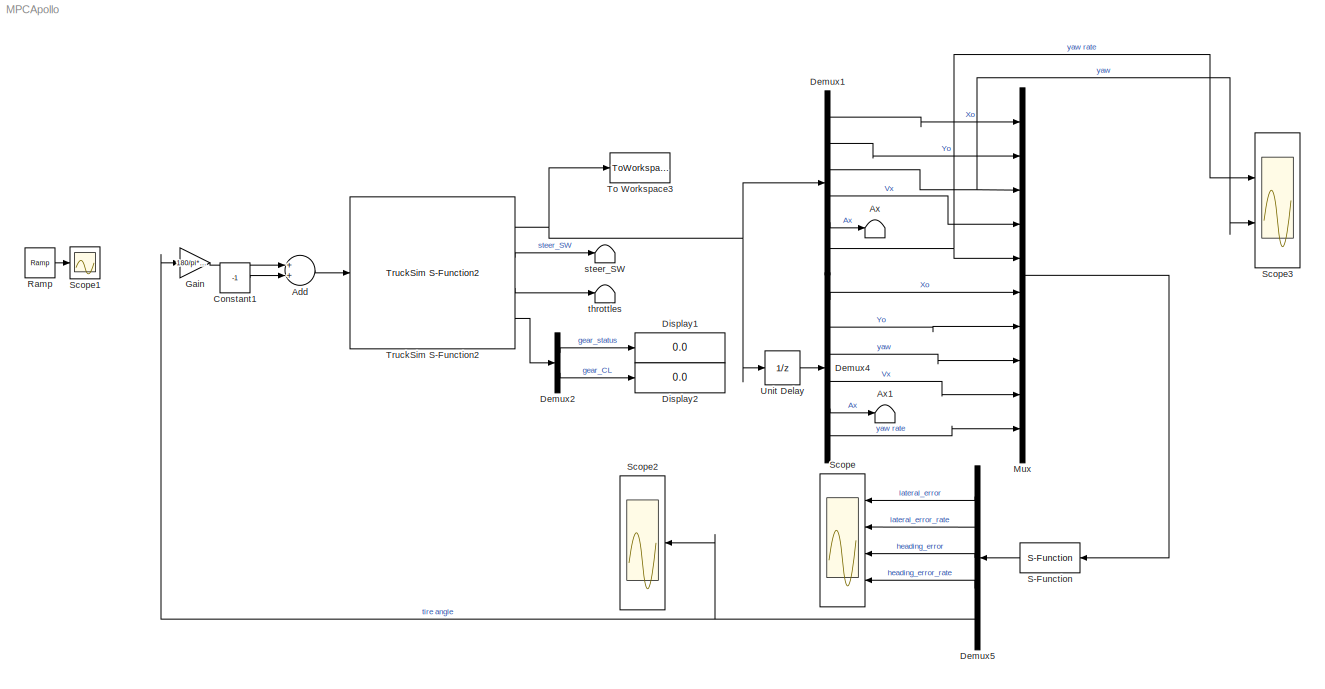
MODEL MPCApollo
KIND model
BLOCK [Sum] Add
  InputSameDT = off
  OutDataTypeStr = Inherit: Inherit via internal rule
  Ports = [2, 1]
  SID = 223
  SaturateOnIntegerOverflow = off
BLOCK [Terminator] Ax
  SID = 207
BLOCK [Terminator] Ax1
  SID = 208
BLOCK [Constant] Constant1
  SID = 224
  Value = -1
BLOCK [Demux] Demux1
  DisplayOption = bar
  Outputs = 6
  Ports = [1, 6]
  SID = 94
BLOCK [Demux] Demux2
  DisplayOption = bar
  Outputs = 2
  Ports = [1, 2]
  SID = 159
BLOCK [Demux] Demux4
  DisplayOption = bar
  Outputs = 6
  Ports = [1, 6]
  SID = 204
BLOCK [Demux] Demux5
  DisplayOption = bar
  Outputs = 5
  Ports = [1, 5]
  SID = 211
BLOCK [Display] Display1
  Decimation = 1
  Ports = [1]
  SID = 158
BLOCK [Display] Display2
  Decimation = 1
  Ports = [1]
  SID = 160
BLOCK [Gain] Gain
  Gain = 180/pi*25
  OutDataTypeStr = Inherit: Inherit via internal rule
  ParamDataTypeStr = Inherit: Inherit via internal rule
  SID = 197
  SaturateOnIntegerOverflow = off
BLOCK [Mux] Mux
  DisplayOption = bar
  Inputs = 10
  Ports = [10, 1]
  SID = 206
BLOCK [Reference] Ramp  REF=simulink/Sources/Ramp
  Commented = on
  InitialOutput = 0
  Ports = [0, 1]
  SID = 214
  SourceBlock = simulink/Sources/Ramp
  SourceProductBaseCode = SL
  SourceProductName = Simulink
  SourceType = Ramp
  VectorParams1D = on
  slope = 100
  start = 0
BLOCK [S-Function] S-Function
  EnableBusSupport = off
  FunctionName = MPC_controller
  Ports = [1, 1]
  SFcnIsStateOwnerBlock = off
  SFunctionDeploymentMode = off
  SID = 193
BLOCK [Scope] Scope
  Floating = off
  NumInputPorts = 4
  Ports = [4]
  SID = 212
  ScopeSpecificationString = Simulink.scopes.TimeScopeBlockCfg('CurrentConfiguration', extmgr.ConfigurationSet(extmgr.Configuration('Core','General UI',true),extmgr.Configuration('Core','Source UI',true),extmgr.Configuration('Sources','WiredSimulink',true),extmgr.Configuration('Visuals','Time Domain',true,'SerializedDisplays',{struct('MinYLimReal','-0.00005','MaxYLimReal','0.0002','YLabelReal','','MinYLimMag','0.00000','MaxYL...<+3418ch>
BLOCK [Scope] Scope1
  Commented = on
  Floating = off
  NumInputPorts = 1
  Ports = [1]
  SID = 215
  ScopeSpecificationString = Simulink.scopes.TimeScopeBlockCfg('CurrentConfiguration', extmgr.ConfigurationSet(extmgr.Configuration('Core','General UI',true),extmgr.Configuration('Core','Source UI',true),extmgr.Configuration('Sources','WiredSimulink',true,'DataLoggingVariableName','ScopeData1'),extmgr.Configuration('Visuals','Time Domain',true,'SerializedDisplays',{struct('MinYLimReal','-99.5546','MaxYLimReal','246.58908','YL...<+1444ch>
BLOCK [Scope] Scope2
  Floating = off
  NumInputPorts = 1
  Ports = [1]
  SID = 218
  ScopeSpecificationString = Simulink.scopes.TimeScopeBlockCfg('CurrentConfiguration', extmgr.ConfigurationSet(extmgr.Configuration('Core','General UI',true),extmgr.Configuration('Core','Source UI',true),extmgr.Configuration('Sources','WiredSimulink',true,'DataLoggingVariableName','ScopeData2'),extmgr.Configuration('Visuals','Time Domain',true,'SerializedDisplays',{struct('MinYLimReal','-0.00009','MaxYLimReal','0.00002','YLab...<+1499ch>
BLOCK [Scope] Scope3
  Floating = off
  NumInputPorts = 2
  Ports = [2]
  SID = 220
  ScopeSpecificationString = Simulink.scopes.TimeScopeBlockCfg('CurrentConfiguration', extmgr.ConfigurationSet(extmgr.Configuration('Core','General UI',true),extmgr.Configuration('Core','Source UI',true),extmgr.Configuration('Sources','WiredSimulink',true,'DataLoggingVariableName','ScopeData3'),extmgr.Configuration('Visuals','Time Domain',true,'SerializedDisplays',{struct('MinYLimReal','-0.00675','MaxYLimReal','0.00628','YLab...<+2159ch>
BLOCK [ToWorkspace] To Workspace3
  FixptAsFi = on
  MaxDataPoints = inf
  Ports = [1]
  SID = 104
  SampleTime = -1
  SaveFormat = Timeseries
  VariableName = y1
BLOCK [Reference] TruckSim S-Function2  REF=Solver_SF/TruckSim S-Function2
  AttributesFormatString = Vehicle Code: %<VehicleCode>
  MultiThreadCoSim = auto
  Ports = [1, 4]
  Priority = 1
  SID = 65
  SIMFILE = simfile.sim
  SourceBlock = Solver_SF/TruckSim S-Function2
  SourceType = Vehicle math model library
  VehicleCode = s_s
BLOCK [UnitDelay] Unit Delay
  HasFrameUpgradeWarning = on
  SID = 192
  SampleTime = -1
BLOCK [Terminator] steer_SW
  SID = 209
BLOCK [Terminator] throttles
  SID = 135
LINE Add:1 -> TruckSim S-Function2:1
LINE Constant1:1 -> Add:2
LINE Demux1:1 -> Mux:1
LINE Demux1:2 -> Mux:2
NET Demux1:3 -> Mux:3, Scope3:2
LINE Demux1:4 -> Mux:4
LINE Demux1:5 -> Ax:1
NET Demux1:6 -> Mux:5, Scope3:1
LINE Demux2:1 -> Display1:1
LINE Demux2:2 -> Display2:1
LINE Demux4:1 -> Mux:6
LINE Demux4:2 -> Mux:7
LINE Demux4:3 -> Mux:8
LINE Demux4:4 -> Mux:9
LINE Demux4:5 -> Ax1:1
LINE Demux4:6 -> Mux:10
LINE Demux5:1 -> Scope:1
LINE Demux5:2 -> Scope:2
LINE Demux5:3 -> Scope:3
LINE Demux5:4 -> Scope:4
NET Demux5:5 -> Gain:1, Scope2:1
LINE Gain:1 -> Add:1
LINE Mux:1 -> S-Function:1
LINE Ramp:1 -> Scope1:1
LINE S-Function:1 -> Demux5:1
NET TruckSim S-Function2:1 -> Demux1:1, To Workspace3:1, Unit Delay:1
LINE TruckSim S-Function2:2 -> steer_SW:1
LINE TruckSim S-Function2:3 -> throttles:1
LINE TruckSim S-Function2:4 -> Demux2:1
LINE Unit Delay:1 -> Demux4:1
note: NET lines group one-source signal fan-out (src -> all destinations, sorted); 1:1 wires keep LINE
